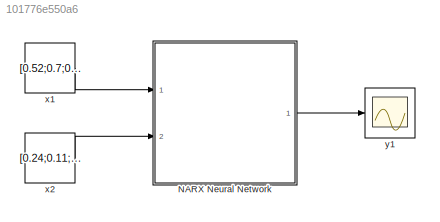
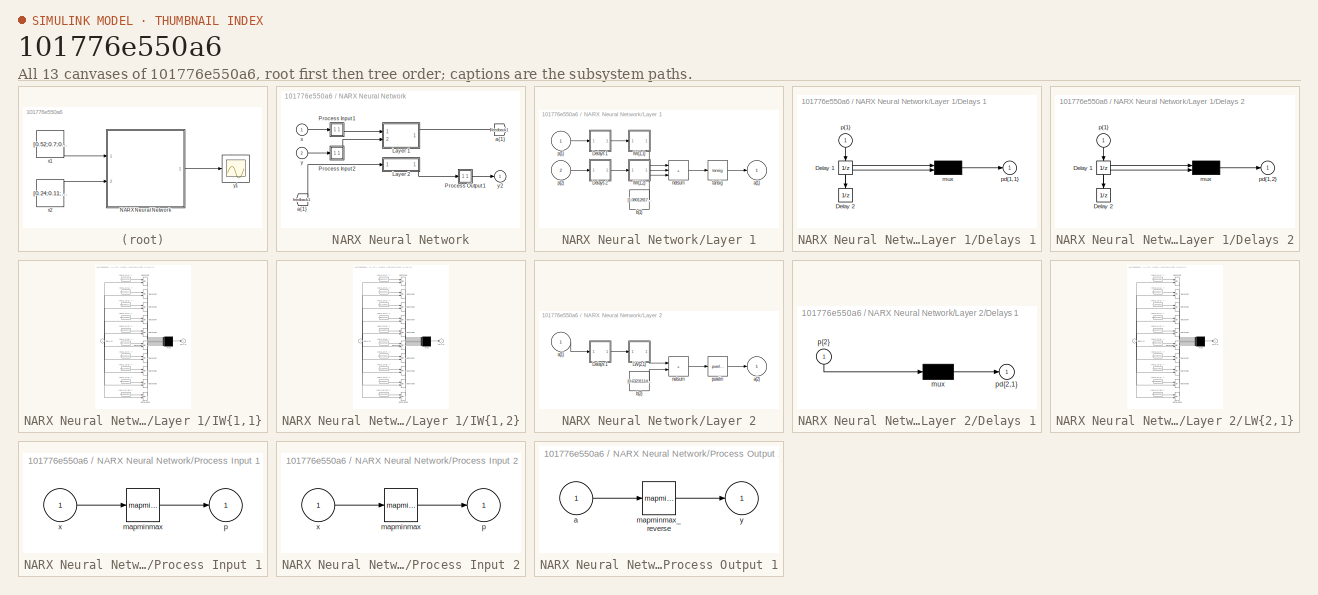
[diagram: thumbnail index - all 13 canvases of the model, root first then tree order]
MODEL slx_101776e550a6
KIND model
CONFIG AbsTol = auto
CONFIG EnableMultiTasking = off
CONFIG FixedStep = auto
CONFIG MaxStep = auto
CONFIG MinStep = auto
CONFIG RelTol = 1e-3
CONFIG SampleTimeConstraint = Unconstrained
CONFIG SolverName = VariableStepAuto
CONFIG StartTime = 0.0
CONFIG StopTime = 10.0
BLOCK [SubSystem] NARX Neural Network
  Ports = [2, 1]
  RequestExecContextInheritance = off
BLOCK [From] NARX Neural Network/ a{1} 
  GotoTag = feedback1
BLOCK [SubSystem] NARX Neural Network/Layer 1
  Ports = [2, 1]
  RequestExecContextInheritance = off
BLOCK [SubSystem] NARX Neural Network/Layer 1/Delays 1
  Ports = [1, 1]
  RequestExecContextInheritance = off
BLOCK [UnitDelay] NARX Neural Network/Layer 1/Delays 1/Delay 1
  InitialCondition = pi_input_1_delayed_1
  NameLocation = left
BLOCK [UnitDelay] NARX Neural Network/Layer 1/Delays 1/Delay 2
  InitialCondition = pi_input_1_delayed_2
  NameLocation = left
BLOCK [Mux] NARX Neural Network/Layer 1/Delays 1/mux
  Inputs = 2
  Ports = [2, 1]
BLOCK [Outport] NARX Neural Network/Layer 1/Delays 1/pd{1,1}
BLOCK [Inport] NARX Neural Network/Layer 1/Delays 1/p{1}
  NameLocation = left
  PortDimensions = 4
  SampleTime = 1
BLOCK [SubSystem] NARX Neural Network/Layer 1/Delays 2
  Ports = [1, 1]
  RequestExecContextInheritance = off
BLOCK [UnitDelay] NARX Neural Network/Layer 1/Delays 2/Delay 1
  InitialCondition = pi_input_2_delayed_1
  NameLocation = left
BLOCK [UnitDelay] NARX Neural Network/Layer 1/Delays 2/Delay 2
  InitialCondition = pi_input_2_delayed_2
  NameLocation = left
BLOCK [Mux] NARX Neural Network/Layer 1/Delays 2/mux
  Inputs = 2
  Ports = [2, 1]
BLOCK [Outport] NARX Neural Network/Layer 1/Delays 2/pd{1,2}
BLOCK [Inport] NARX Neural Network/Layer 1/Delays 2/p{1}
  NameLocation = left
  PortDimensions = 10
  SampleTime = 1
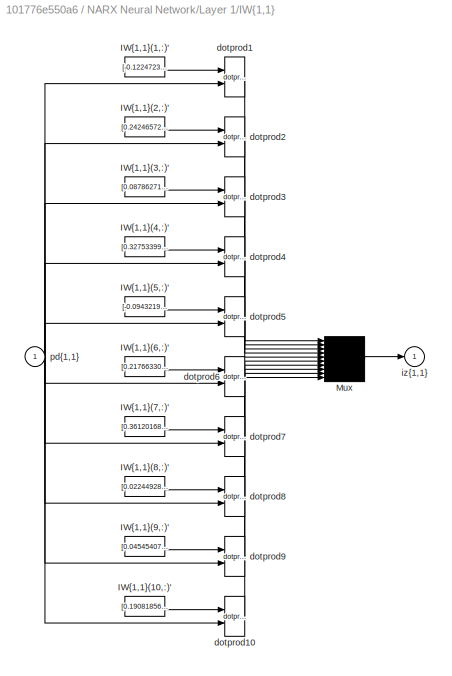
BLOCK [SubSystem] NARX Neural Network/Layer 1/IW{1,1}
  Ports = [1, 1]
  RequestExecContextInheritance = off
BLOCK [Constant] NARX Neural Network/Layer 1/IW{1,1}/IW{1,1}(1,:)'
  Value = [-0.1224723638716402052128984223600127734243869781494140625;-0.3272459825504128172468654156546108424663543701171875;-0.1644271449580847199722910545460763387382030487060546875;0.57264450002805056261223626279388554394245147705078125;-0.06048568878075073762534685783975874073803424835205078125;0.223227164473066286287661341702914796769618988037109375;-0.0190584242402477774258606757484812987968325614929...<+63ch>
BLOCK [Constant] NARX Neural Network/Layer 1/IW{1,1}/IW{1,1}(10,:)'
  Value = [0.1908185619389482223784426651036483235657215118408203125;-0.364308552820070408184705001986003480851650238037109375;0.042247088415687049367530647714374936185777187347412109375;-0.4511925818793398601513899848214350640773773193359375;0.2259289495251827484256779143834137357771396636962890625;-0.3262510626149310866139785503037273883819580078125;-0.05500614232348080556711522604018682613968849182128906...<+59ch>
BLOCK [Constant] NARX Neural Network/Layer 1/IW{1,1}/IW{1,1}(2,:)'
  Value = [0.2424657229293740723363725919625721871852874755859375;0.61044817882070490089319036997039802372455596923828125;0.029426927959954295166422610918743885122239589691162109375;-0.389312569909250838495751168011338450014591217041015625;-0.362729002225335772635617104242555797100067138671875;-0.2394230697254556561315297358305542729794979095458984375;-0.06831178591093495233721455406339373439550399780273437...<+61ch>
BLOCK [Constant] NARX Neural Network/Layer 1/IW{1,1}/IW{1,1}(3,:)'
  Value = [0.0878627153945485683816940536416950635612010955810546875;-0.10868956786818624593582427451110561378300189971923828125;0.003320688322202099661273333452982114977203309535980224609375;-0.028863266432759278334874153415512409992516040802001953125;-0.004309564181281520280075714168788181268610060214996337890625;0.093685284602520735308672783503425307571887969970703125;-0.038558146992500569316675296249741...<+82ch>
BLOCK [Constant] NARX Neural Network/Layer 1/IW{1,1}/IW{1,1}(4,:)'
  Value = [0.32753399114338510589305997200426645576953887939453125;-0.06516688941377120347642204478688654489815235137939453125;0.2778103137181517912068784426082856953144073486328125;0.538106050871987928729822669993154704570770263671875;0.269643477419196420097335931131965480744838714599609375;0.1808721157042202654086082702633575536310672760009765625;-0.20367457353888440696465522705693729221820831298828125;0....<+56ch>
BLOCK [Constant] NARX Neural Network/Layer 1/IW{1,1}/IW{1,1}(5,:)'
  Value = [-0.09432192176716279463644099223529337905347347259521484375;0.384912230366909413614706636508344672620296478271484375;-0.013107624645180011857537039077215013094246387481689453125;0.432402225644634763401796817561262287199497222900390625;0.01467470846526797330355851300964786787517368793487548828125;-0.311855250125882499379059709099237807095050811767578125;0.007566019275313939397575868639478358090855...<+72ch>
BLOCK [Constant] NARX Neural Network/Layer 1/IW{1,1}/IW{1,1}(6,:)'
  Value = [0.217663304750638719742283910818514414131641387939453125;0.0160955223635426032668949147819148492999374866485595703125;0.03373270263645840316701907113383640535175800323486328125;0.461161766861531818850750141791650094091892242431640625;-0.1841467185569863052041483797438559122383594512939453125;-0.06357475733769908654569036343673360534012317657470703125;-0.0411771805446624061808336136891739442944526...<+76ch>
BLOCK [Constant] NARX Neural Network/Layer 1/IW{1,1}/IW{1,1}(7,:)'
  Value = [0.36120168756955084443660553006338886916637420654296875;-0.1693601286070866851485305915048229508101940155029296875;-0.037610779283216357049557387881577596999704837799072265625;-0.2152776354201784148045817346428520977497100830078125;0.06378422228839415730750062039078329689800739288330078125;0.07441943145178138430129166636106674559414386749267578125;-0.0062424893192859591539711772156806546263396739...<+71ch>
BLOCK [Constant] NARX Neural Network/Layer 1/IW{1,1}/IW{1,1}(8,:)'
  Value = [0.0224492811909891530619542976410230039618909358978271484375;0.004359173224923172142164506936978796147741377353668212890625;-0.0123879902387121453022356121209668344818055629730224609375;0.261814032696891130225225197136751376092433929443359375;-0.00952574033227335074947017545810012961737811565399169921875;0.1042534958370524289517078386779758147895336151123046875;0.009669143693752720036815873072555...<+84ch>
BLOCK [Constant] NARX Neural Network/Layer 1/IW{1,1}/IW{1,1}(9,:)'
  Value = [0.045454074938318156373640022138715721666812896728515625;0.43299066027697208358659963778336532413959503173828125;-0.07572779606926942352895792964773136191070079803466796875;0.297556185334404366127358798621571622788906097412109375;-0.0690048253928155219671936038139392621815204620361328125;-0.345115340545246784831334707632777281105518341064453125;0.17919963849835010560873627127875806763768196105957...<+62ch>
BLOCK [Mux] NARX Neural Network/Layer 1/IW{1,1}/Mux
  Inputs = 10
  Ports = [10, 1]
BLOCK [Reference] NARX Neural Network/Layer 1/IW{1,1}/dotprod1  REF=neural/Weight Functions/dotprod
  Ports = [2, 1]
  SourceBlock = neural/Weight Functions/dotprod
  SourceProductBaseCode = NN
  SourceType = DOTPROD
BLOCK [Reference] NARX Neural Network/Layer 1/IW{1,1}/dotprod10  REF=neural/Weight Functions/dotprod
  Ports = [2, 1]
  SourceBlock = neural/Weight Functions/dotprod
  SourceProductBaseCode = NN
  SourceType = DOTPROD
BLOCK [Reference] NARX Neural Network/Layer 1/IW{1,1}/dotprod2  REF=neural/Weight Functions/dotprod
  Ports = [2, 1]
  SourceBlock = neural/Weight Functions/dotprod
  SourceProductBaseCode = NN
  SourceType = DOTPROD
BLOCK [Reference] NARX Neural Network/Layer 1/IW{1,1}/dotprod3  REF=neural/Weight Functions/dotprod
  Ports = [2, 1]
  SourceBlock = neural/Weight Functions/dotprod
  SourceProductBaseCode = NN
  SourceType = DOTPROD
BLOCK [Reference] NARX Neural Network/Layer 1/IW{1,1}/dotprod4  REF=neural/Weight Functions/dotprod
  Ports = [2, 1]
  SourceBlock = neural/Weight Functions/dotprod
  SourceProductBaseCode = NN
  SourceType = DOTPROD
BLOCK [Reference] NARX Neural Network/Layer 1/IW{1,1}/dotprod5  REF=neural/Weight Functions/dotprod
  Ports = [2, 1]
  SourceBlock = neural/Weight Functions/dotprod
  SourceProductBaseCode = NN
  SourceType = DOTPROD
BLOCK [Reference] NARX Neural Network/Layer 1/IW{1,1}/dotprod6  REF=neural/Weight Functions/dotprod
  Ports = [2, 1]
  SourceBlock = neural/Weight Functions/dotprod
  SourceProductBaseCode = NN
  SourceType = DOTPROD
BLOCK [Reference] NARX Neural Network/Layer 1/IW{1,1}/dotprod7  REF=neural/Weight Functions/dotprod
  Ports = [2, 1]
  SourceBlock = neural/Weight Functions/dotprod
  SourceProductBaseCode = NN
  SourceType = DOTPROD
BLOCK [Reference] NARX Neural Network/Layer 1/IW{1,1}/dotprod8  REF=neural/Weight Functions/dotprod
  Ports = [2, 1]
  SourceBlock = neural/Weight Functions/dotprod
  SourceProductBaseCode = NN
  SourceType = DOTPROD
BLOCK [Reference] NARX Neural Network/Layer 1/IW{1,1}/dotprod9  REF=neural/Weight Functions/dotprod
  Ports = [2, 1]
  SourceBlock = neural/Weight Functions/dotprod
  SourceProductBaseCode = NN
  SourceType = DOTPROD
BLOCK [Outport] NARX Neural Network/Layer 1/IW{1,1}/iz{1,1}
BLOCK [Inport] NARX Neural Network/Layer 1/IW{1,1}/pd{1,1}
  PortDimensions = 8
  SampleTime = 1
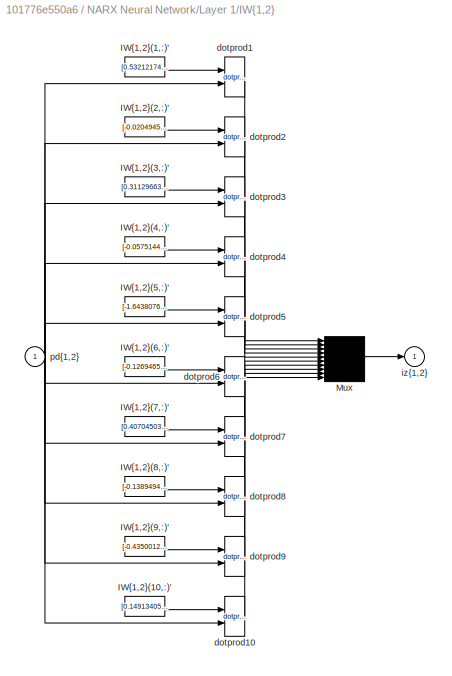
BLOCK [SubSystem] NARX Neural Network/Layer 1/IW{1,2}
  Ports = [1, 1]
  RequestExecContextInheritance = off
BLOCK [Constant] NARX Neural Network/Layer 1/IW{1,2}/IW{1,2}(1,:)'
  Value = [0.53212174794800748411915947144734673202037811279296875;0.817018572346948968032620541634969413280487060546875;-0.07493102459351637378848209891657461412250995635986328125;0.53944162567220654835864479537121951580047607421875;0.10845896887198758218318062063190154731273651123046875;1.132252522673124150998091863584704697132110595703125;0.327636360657517611283395808641216717660427093505859375;0.7099417...<+726ch>
BLOCK [Constant] NARX Neural Network/Layer 1/IW{1,2}/IW{1,2}(10,:)'
  Value = [0.149134050770307780009460429937462322413921356201171875;0.016092934597212338321270408414420671761035919189453125;-0.497056507890472010213755993390805087983608245849609375;-0.47348819318803136990680968665401451289653778076171875;0.01510195472959737460205698056370238191448152065277099609375;-0.182922680974307194645689378376118838787078857421875;-0.34197417891304082715464573993813246488571166992187...<+742ch>
BLOCK [Constant] NARX Neural Network/Layer 1/IW{1,2}/IW{1,2}(2,:)'
  Value = [-0.0204945748265934028775614450523789855651557445526123046875;1.9312316925216492791150812990963459014892578125;-0.349380909352063617756556368476594798266887664794921875;-0.495796724108398423336296900743036530911922454833984375;0.446205717562955295196758243037038482725620269775390625;0.262472904500300974195425851576146669685840606689453125;-0.41517043024050115374024017000920139253139495849609375;0...<+748ch>
BLOCK [Constant] NARX Neural Network/Layer 1/IW{1,2}/IW{1,2}(3,:)'
  Value = [0.311296639071176162172349677348393015563488006591796875;0.344762228671464610041397236273041926324367523193359375;0.0278297350072136233378738978672117809765040874481201171875;0.225855871469414937191544368033646605908870697021484375;-0.50201215734075166352567975991405546665191650390625;-0.51006517344202284558463134089834056794643402099609375;0.368850413907754026698881943957530893385410308837890625...<+753ch>
BLOCK [Constant] NARX Neural Network/Layer 1/IW{1,2}/IW{1,2}(4,:)'
  Value = [-0.057514447860808053103465198319099727086722850799560546875;0.2488193461722778554445767440483905375003814697265625;0.436179108525951431118983236956410109996795654296875;0.62850371404861415935982904557022266089916229248046875;0.360353789899425347442729616886936128139495849609375;0.319649554425117887745955158607102930545806884765625;-0.056141492256935675297935262051396421156823635101318359375;-0.0...<+741ch>
BLOCK [Constant] NARX Neural Network/Layer 1/IW{1,2}/IW{1,2}(5,:)'
  Value = [-1.6438076496059796927085017159697599709033966064453125;-0.086324763306777685389903354007401503622531890869140625;-0.09369173695724915262861287601481308229267597198486328125;0.254420292022872585047110760569921694695949554443359375;-0.0540278394423806818114286443233140744268894195556640625;0.025839570314925057459287671690617571584880352020263671875;0.48380883965954130099262897601875010877847671508...<+767ch>
BLOCK [Constant] NARX Neural Network/Layer 1/IW{1,2}/IW{1,2}(6,:)'
  Value = [-0.126946547161197520470210520215914584696292877197265625;-0.10739417764484891770759844575877650640904903411865234375;1.8210936696847757065853556923684664070606231689453125;0.0805106956973491438844803269603289663791656494140625;0.67265333014620309892706018217722885310649871826171875;0.049347224056254017365841235687184962444007396697998046875;-0.0877146572882806646598297106720565352588891983032226...<+749ch>
BLOCK [Constant] NARX Neural Network/Layer 1/IW{1,2}/IW{1,2}(7,:)'
  Value = [0.407045031801934131809872496887692250311374664306640625;0.50594537530523042700991709352820180356502532958984375;-0.006874370035477550024138881923363442183472216129302978515625;0.460101943369063182132094880216754972934722900390625;-0.1843383523793279687996715665576630271971225738525390625;-0.4273468064774779140435612134751863777637481689453125;0.326576840546616620208908443601103499531745910644531...<+744ch>
BLOCK [Constant] NARX Neural Network/Layer 1/IW{1,2}/IW{1,2}(8,:)'
  Value = [-0.13894941599945964672002673978568054735660552978515625;-0.19210359160348111640104207253898493945598602294921875;0.023064825387133815193241304086768650449812412261962890625;1.201400733368269246881254730396904051303863525390625;0.32834265774768944812223026019637472927570343017578125;0.52654210812649127060325326965539716184139251708984375;-0.3293914298690354680587688562809489667415618896484375;0.4...<+746ch>
BLOCK [Constant] NARX Neural Network/Layer 1/IW{1,2}/IW{1,2}(9,:)'
  Value = [-0.435001277681425657650748917149030603468418121337890625;-0.2161688784686718600713817295400076545774936676025390625;0.2019963442699870548313612061974708922207355499267578125;-0.15392579474173373466072689552675001323223114013671875;-0.12359328339492926807086092821919010020792484283447265625;0.10924243951800226282156103252418688498437404632568359375;-0.121462177183892724996461254249879857525229454...<+760ch>
BLOCK [Mux] NARX Neural Network/Layer 1/IW{1,2}/Mux
  Inputs = 10
  Ports = [10, 1]
BLOCK [Reference] NARX Neural Network/Layer 1/IW{1,2}/dotprod1  REF=neural/Weight Functions/dotprod
  Ports = [2, 1]
  SourceBlock = neural/Weight Functions/dotprod
  SourceProductBaseCode = NN
  SourceType = DOTPROD
BLOCK [Reference] NARX Neural Network/Layer 1/IW{1,2}/dotprod10  REF=neural/Weight Functions/dotprod
  Ports = [2, 1]
  SourceBlock = neural/Weight Functions/dotprod
  SourceProductBaseCode = NN
  SourceType = DOTPROD
BLOCK [Reference] NARX Neural Network/Layer 1/IW{1,2}/dotprod2  REF=neural/Weight Functions/dotprod
  Ports = [2, 1]
  SourceBlock = neural/Weight Functions/dotprod
  SourceProductBaseCode = NN
  SourceType = DOTPROD
BLOCK [Reference] NARX Neural Network/Layer 1/IW{1,2}/dotprod3  REF=neural/Weight Functions/dotprod
  Ports = [2, 1]
  SourceBlock = neural/Weight Functions/dotprod
  SourceProductBaseCode = NN
  SourceType = DOTPROD
BLOCK [Reference] NARX Neural Network/Layer 1/IW{1,2}/dotprod4  REF=neural/Weight Functions/dotprod
  Ports = [2, 1]
  SourceBlock = neural/Weight Functions/dotprod
  SourceProductBaseCode = NN
  SourceType = DOTPROD
BLOCK [Reference] NARX Neural Network/Layer 1/IW{1,2}/dotprod5  REF=neural/Weight Functions/dotprod
  Ports = [2, 1]
  SourceBlock = neural/Weight Functions/dotprod
  SourceProductBaseCode = NN
  SourceType = DOTPROD
BLOCK [Reference] NARX Neural Network/Layer 1/IW{1,2}/dotprod6  REF=neural/Weight Functions/dotprod
  Ports = [2, 1]
  SourceBlock = neural/Weight Functions/dotprod
  SourceProductBaseCode = NN
  SourceType = DOTPROD
BLOCK [Reference] NARX Neural Network/Layer 1/IW{1,2}/dotprod7  REF=neural/Weight Functions/dotprod
  Ports = [2, 1]
  SourceBlock = neural/Weight Functions/dotprod
  SourceProductBaseCode = NN
  SourceType = DOTPROD
BLOCK [Reference] NARX Neural Network/Layer 1/IW{1,2}/dotprod8  REF=neural/Weight Functions/dotprod
  Ports = [2, 1]
  SourceBlock = neural/Weight Functions/dotprod
  SourceProductBaseCode = NN
  SourceType = DOTPROD
BLOCK [Reference] NARX Neural Network/Layer 1/IW{1,2}/dotprod9  REF=neural/Weight Functions/dotprod
  Ports = [2, 1]
  SourceBlock = neural/Weight Functions/dotprod
  SourceProductBaseCode = NN
  SourceType = DOTPROD
BLOCK [Outport] NARX Neural Network/Layer 1/IW{1,2}/iz{1,2}
BLOCK [Inport] NARX Neural Network/Layer 1/IW{1,2}/pd{1,2}
  PortDimensions = 20
  SampleTime = 1
BLOCK [Outport] NARX Neural Network/Layer 1/a{1}
  InitialOutput = [0;0;0;0;0;0;0;0;0;0]
BLOCK [Constant] NARX Neural Network/Layer 1/b{1}
  Value = [1.0801281717727395648154242735472507774829864501953125;-1.310912600446497489059538565925322473049163818359375;0.9404335907148200224270340186194516718387603759765625;-0.81368279707896140617862101862556301057338714599609375;0.432949116587421134472180028751608915627002716064453125;0.068784327532554534467834628230775706470012664794921875;-0.29264096087120716749296889247489161789417266845703125;0.7805...<+155ch>
BLOCK [Sum] NARX Neural Network/Layer 1/netsum
  IconShape = rectangular
  InputSameDT = on
  Inputs = 3
  OutDataTypeStr = Inherit: Same as first input
  Ports = [3, 1]
  SaturateOnIntegerOverflow = on
BLOCK [Inport] NARX Neural Network/Layer 1/p{1}
  PortDimensions = 4
  SampleTime = 1
BLOCK [Inport] NARX Neural Network/Layer 1/p{2}
  Port = 2
  PortDimensions = 10
  SampleTime = 1
BLOCK [Reference] NARX Neural Network/Layer 1/tansig  REF=neural/Transfer Functions/tansig
  Ports = [1, 1]
  SourceBlock = neural/Transfer Functions/tansig
  SourceProductBaseCode = NN
  SourceType = TANSIG
BLOCK [SubSystem] NARX Neural Network/Layer 2
  Ports = [1, 1]
  RequestExecContextInheritance = off
BLOCK [SubSystem] NARX Neural Network/Layer 2/Delays 1
  Ports = [1, 1]
  RequestExecContextInheritance = off
BLOCK [Mux] NARX Neural Network/Layer 2/Delays 1/mux
  Inputs = 1
  Ports = [1, 1]
BLOCK [Outport] NARX Neural Network/Layer 2/Delays 1/pd{2,1}
BLOCK [Inport] NARX Neural Network/Layer 2/Delays 1/p{2}
  NameLocation = left
  PortDimensions = 10
  SampleTime = 1
BLOCK [SubSystem] NARX Neural Network/Layer 2/LW{2,1}
  Ports = [1, 1]
  RequestExecContextInheritance = off
BLOCK [Constant] NARX Neural Network/Layer 2/LW{2,1}/IW{2,1}(1,:)'
  Value = [0.2593109911101532105703881825320422649383544921875;0.043027177460193015423595142010526615194976329803466796875;-0.031630578930780896274033153758864500559866428375244140625;-0.8946206870678163891597023393842391669750213623046875;-1.376635707680159637078531886800192296504974365234375;0.0101372112858142127134186694092932157218456268310546875;-0.036902676601514618204280537838712916709482669830322265...<+176ch>
BLOCK [Constant] NARX Neural Network/Layer 2/LW{2,1}/IW{2,1}(10,:)'
  Value = [0.259353080009003644779141950493794865906238555908203125;0.0344788966224069126642604032895178534090518951416015625;-1.639734198097074990840837926953099668025970458984375;0.037171314064603451499113617728653480298817157745361328125;-0.044091665192930361294454399967435165308415889739990234375;0.113806681736434545104685867045191116631031036376953125;-0.040461815656080674097339056061173323541879653930...<+181ch>
BLOCK [Constant] NARX Neural Network/Layer 2/LW{2,1}/IW{2,1}(2,:)'
  Value = [0.63030827275463219283579974216991104185581207275390625;0.95420909453976487935022987585398368537425994873046875;-0.0170684212993636071076242188837568392045795917510986328125;0.10423405085466287689488495971090742386877536773681640625;0.0933351443445988027125537200845428742468357086181640625;0.05706595557659464856836706303511164151132106781005859375;-0.0036970778483764979611969625494793945108540356...<+190ch>
BLOCK [Constant] NARX Neural Network/Layer 2/LW{2,1}/IW{2,1}(3,:)'
  Value = [-1.3649029808437316280134155022096820175647735595703125;-0.0099506250485993270882278949329702300019562244415283203125;0.004944580631372802632939045253124277223832905292510986328125;0.52636799453096261292017743471660651266574859619140625;0.0107608841966076625162873625640713726170361042022705078125;3.2396981083788300992409858736209571361541748046875;0.01758270636367695663460075650164071703329682350...<+189ch>
BLOCK [Constant] NARX Neural Network/Layer 2/LW{2,1}/IW{2,1}(4,:)'
  Value = [0.060748789116446537394988780533822136931121349334716796875;-0.00794143061588940997463925697275044512934982776641845703125;-0.0246556586678514065569256530352504341863095760345458984375;-0.036168325016118781090046496728973579593002796173095703125;0.017769845931746054701338977110935957171022891998291015625;-0.00682202459217154215387335369769061799161136150360107421875;0.0047869357173603317018306668...<+202ch>
BLOCK [Constant] NARX Neural Network/Layer 2/LW{2,1}/IW{2,1}(5,:)'
  Value = [-0.01407475869495870314518359833755312138237059116363525390625;-0.0813608715144924499185208333074115216732025146484375;0.1181201219432181648283375352548318915069103240966796875;0.76491096816797898849671355492318980395793914794921875;0.11204011842603171789090055199267226271331310272216796875;-0.385610136227055699809085353990667499601840972900390625;0.09409237571880205153185272592963883653283119201...<+183ch>
BLOCK [Constant] NARX Neural Network/Layer 2/LW{2,1}/IW{2,1}(6,:)'
  Value = [0.09194150932908216888872487970729707740247249603271484375;0.00893170196256900909836939916885967249982059001922607421875;-0.00270216338763807316369902622454901575110852718353271484375;0.4384877115912220180149461157270707190036773681640625;-0.010539276489478908993557837447951897047460079193115234375;0.1074971903280156071414097596061765216290950775146484375;-0.01392686220378177089362914387038472341...<+198ch>
BLOCK [Constant] NARX Neural Network/Layer 2/LW{2,1}/IW{2,1}(7,:)'
  Value = [1.2079879297442683849794775596819818019866943359375;-0.96997720146081534142723512559314258396625518798828125;1.341993650625849188173788206768222153186798095703125;2.48313839798580904272284897160716354846954345703125;1.236241853293317038975374089204706251621246337890625;-2.98728747420875695439690389321185648441314697265625;0.99144276990696145190895549603737890720367431640625;-1.8470882435209095007...<+144ch>
BLOCK [Constant] NARX Neural Network/Layer 2/LW{2,1}/IW{2,1}(8,:)'
  Value = [-0.6917669747991321838043177194776944816112518310546875;0.02005886442724380547275586650357581675052642822265625;0.2344520490258656664206426967211882583796977996826171875;0.16810169695141408130467652881634421646595001220703125;-0.0161572705531280273738570230079858447425067424774169921875;-0.1757694695147239138943717762231244705617427825927734375;-0.0217584638624064921619272183761495398357510566711...<+179ch>
BLOCK [Constant] NARX Neural Network/Layer 2/LW{2,1}/IW{2,1}(9,:)'
  Value = [0.1908306327012936065568027288463781587779521942138671875;-0.0182508750380459862372450885459329583682119846343994140625;0.006372142546187395568957345659555357997305691242218017578125;-0.071890224988197803934752982968348078429698944091796875;0.044783945745097551716096262452992959879338741302490234375;0.026064510211621379209834259427225333638489246368408203125;-0.94180942639733522536715781825478188...<+190ch>
BLOCK [Mux] NARX Neural Network/Layer 2/LW{2,1}/Mux
  Inputs = 10
  Ports = [10, 1]
BLOCK [Inport] NARX Neural Network/Layer 2/LW{2,1}/ad{2,1}
  PortDimensions = 10
  SampleTime = 1
BLOCK [Reference] NARX Neural Network/Layer 2/LW{2,1}/dotprod1  REF=neural/Weight Functions/dotprod
  Ports = [2, 1]
  SourceBlock = neural/Weight Functions/dotprod
  SourceProductBaseCode = NN
  SourceType = DOTPROD
BLOCK [Reference] NARX Neural Network/Layer 2/LW{2,1}/dotprod10  REF=neural/Weight Functions/dotprod
  Ports = [2, 1]
  SourceBlock = neural/Weight Functions/dotprod
  SourceProductBaseCode = NN
  SourceType = DOTPROD
BLOCK [Reference] NARX Neural Network/Layer 2/LW{2,1}/dotprod2  REF=neural/Weight Functions/dotprod
  Ports = [2, 1]
  SourceBlock = neural/Weight Functions/dotprod
  SourceProductBaseCode = NN
  SourceType = DOTPROD
BLOCK [Reference] NARX Neural Network/Layer 2/LW{2,1}/dotprod3  REF=neural/Weight Functions/dotprod
  Ports = [2, 1]
  SourceBlock = neural/Weight Functions/dotprod
  SourceProductBaseCode = NN
  SourceType = DOTPROD
BLOCK [Reference] NARX Neural Network/Layer 2/LW{2,1}/dotprod4  REF=neural/Weight Functions/dotprod
  Ports = [2, 1]
  SourceBlock = neural/Weight Functions/dotprod
  SourceProductBaseCode = NN
  SourceType = DOTPROD
BLOCK [Reference] NARX Neural Network/Layer 2/LW{2,1}/dotprod5  REF=neural/Weight Functions/dotprod
  Ports = [2, 1]
  SourceBlock = neural/Weight Functions/dotprod
  SourceProductBaseCode = NN
  SourceType = DOTPROD
BLOCK [Reference] NARX Neural Network/Layer 2/LW{2,1}/dotprod6  REF=neural/Weight Functions/dotprod
  Ports = [2, 1]
  SourceBlock = neural/Weight Functions/dotprod
  SourceProductBaseCode = NN
  SourceType = DOTPROD
BLOCK [Reference] NARX Neural Network/Layer 2/LW{2,1}/dotprod7  REF=neural/Weight Functions/dotprod
  Ports = [2, 1]
  SourceBlock = neural/Weight Functions/dotprod
  SourceProductBaseCode = NN
  SourceType = DOTPROD
BLOCK [Reference] NARX Neural Network/Layer 2/LW{2,1}/dotprod8  REF=neural/Weight Functions/dotprod
  Ports = [2, 1]
  SourceBlock = neural/Weight Functions/dotprod
  SourceProductBaseCode = NN
  SourceType = DOTPROD
BLOCK [Reference] NARX Neural Network/Layer 2/LW{2,1}/dotprod9  REF=neural/Weight Functions/dotprod
  Ports = [2, 1]
  SourceBlock = neural/Weight Functions/dotprod
  SourceProductBaseCode = NN
  SourceType = DOTPROD
BLOCK [Outport] NARX Neural Network/Layer 2/LW{2,1}/lz{2,1}
BLOCK [Inport] NARX Neural Network/Layer 2/a{1} 
  PortDimensions = 10
  SampleTime = 1
BLOCK [Outport] NARX Neural Network/Layer 2/a{2}
  InitialOutput = [0;0;0;0;0;0;0;0;0;0]
BLOCK [Constant] NARX Neural Network/Layer 2/b{2}
  Value = [0.63231114797012033523770924148266203701496124267578125;0.077425009453641446821592353444430045783519744873046875;0.69336797498678903739488532664836384356021881103515625;0.96191102890088908683452473269426263868808746337890625;-0.01280570802179627383499127546429008361883461475372314453125;0.1820181237505598959014463389394222758710384368896484375;-3.18169363647799041672215025755576789379119873046875...<+169ch>
BLOCK [Sum] NARX Neural Network/Layer 2/netsum
  IconShape = rectangular
  InputSameDT = on
  Inputs = 2
  OutDataTypeStr = Inherit: Same as first input
  Ports = [2, 1]
  SaturateOnIntegerOverflow = on
BLOCK [Reference] NARX Neural Network/Layer 2/purelin  REF=neural/Transfer Functions/purelin
  Ports = [1, 1]
  SourceBlock = neural/Transfer Functions/purelin
  SourceProductBaseCode = NN
  SourceType = PURELIN
BLOCK [SubSystem] NARX Neural Network/Process Input 1
  Ports = [1, 1]
  RequestExecContextInheritance = off
BLOCK [Reference] NARX Neural Network/Process Input 1/mapminmax  REF=neural/Processing Functions/mapminmax
  Ports = [1, 1]
  SourceBlock = neural/Processing Functions/mapminmax
  SourceProductBaseCode = NN
  SourceType = MAPMINMAX Preprocess
BLOCK [Outport] NARX Neural Network/Process Input 1/p
  PortDimensions = 4
  SampleTime = 1
BLOCK [Inport] NARX Neural Network/Process Input 1/x
  PortDimensions = 4
  SampleTime = 1
BLOCK [SubSystem] NARX Neural Network/Process Input 2
  Ports = [1, 1]
  RequestExecContextInheritance = off
BLOCK [Reference] NARX Neural Network/Process Input 2/mapminmax  REF=neural/Processing Functions/mapminmax
  Ports = [1, 1]
  SourceBlock = neural/Processing Functions/mapminmax
  SourceProductBaseCode = NN
  SourceType = MAPMINMAX Preprocess
BLOCK [Outport] NARX Neural Network/Process Input 2/p
  PortDimensions = 10
  SampleTime = 1
BLOCK [Inport] NARX Neural Network/Process Input 2/x
  PortDimensions = 10
  SampleTime = 1
BLOCK [SubSystem] NARX Neural Network/Process Output 1
  Ports = [1, 1]
  RequestExecContextInheritance = off
BLOCK [Inport] NARX Neural Network/Process Output 1/a
  PortDimensions = 10
  SampleTime = 1
BLOCK [Reference] NARX Neural Network/Process Output 1/mapminmax_reverse  REF=neural/Processing Functions/mapminmax_reverse
  Ports = [1, 1]
  SourceBlock = neural/Processing Functions/mapminmax_reverse
  SourceProductBaseCode = NN
  SourceType = MAPMINMAX Reverse Process
BLOCK [Outport] NARX Neural Network/Process Output 1/y
  PortDimensions = 10
  SampleTime = 1
BLOCK [Goto] NARX Neural Network/a{1}
  GotoTag = feedback1
BLOCK [Inport] NARX Neural Network/x
  PortDimensions = 4
  SampleTime = 1
BLOCK [Inport] NARX Neural Network/y
  Port = 2
  PortDimensions = 10
  SampleTime = 1
BLOCK [Outport] NARX Neural Network/y2
  InitialOutput = [0;0;0;0;0;0;0;0;0;0]
BLOCK [Constant] x1
  SampleTime = 1
  Value = [0.52;0.7;0.2;0.89]
BLOCK [Constant] x2
  SampleTime = 1
  Value = [0.24;0.11;0.85;0.077;0.25;0.78;0.12;0.18;0.5;0.34]
BLOCK [Scope] y1
  Floating = off
  NumInputPorts = 1
  Ports = [1]
LINE NARX Neural Network/ a{1} :1 -> NARX Neural Network/Layer 2:1
NET NARX Neural Network/Layer 1/Delays 1/Delay 1:1 -> NARX Neural Network/Layer 1/Delays 1/Delay 2:1, NARX Neural Network/Layer 1/Delays 1/mux:1
LINE NARX Neural Network/Layer 1/Delays 1/Delay 2:1 -> NARX Neural Network/Layer 1/Delays 1/mux:2
LINE NARX Neural Network/Layer 1/Delays 1/mux:1 -> NARX Neural Network/Layer 1/Delays 1/pd{1,1}:1
LINE NARX Neural Network/Layer 1/Delays 1/p{1}:1 -> NARX Neural Network/Layer 1/Delays 1/Delay 1:1
LINE NARX Neural Network/Layer 1/Delays 1:1 -> NARX Neural Network/Layer 1/IW{1,1}:1
NET NARX Neural Network/Layer 1/Delays 2/Delay 1:1 -> NARX Neural Network/Layer 1/Delays 2/Delay 2:1, NARX Neural Network/Layer 1/Delays 2/mux:1
LINE NARX Neural Network/Layer 1/Delays 2/Delay 2:1 -> NARX Neural Network/Layer 1/Delays 2/mux:2
LINE NARX Neural Network/Layer 1/Delays 2/mux:1 -> NARX Neural Network/Layer 1/Delays 2/pd{1,2}:1
LINE NARX Neural Network/Layer 1/Delays 2/p{1}:1 -> NARX Neural Network/Layer 1/Delays 2/Delay 1:1
LINE NARX Neural Network/Layer 1/Delays 2:1 -> NARX Neural Network/Layer 1/IW{1,2}:1
LINE NARX Neural Network/Layer 1/IW{1,1}/IW{1,1}(1,:)':1 -> NARX Neural Network/Layer 1/IW{1,1}/dotprod1:1
LINE NARX Neural Network/Layer 1/IW{1,1}/IW{1,1}(10,:)':1 -> NARX Neural Network/Layer 1/IW{1,1}/dotprod10:1
LINE NARX Neural Network/Layer 1/IW{1,1}/IW{1,1}(2,:)':1 -> NARX Neural Network/Layer 1/IW{1,1}/dotprod2:1
LINE NARX Neural Network/Layer 1/IW{1,1}/IW{1,1}(3,:)':1 -> NARX Neural Network/Layer 1/IW{1,1}/dotprod3:1
LINE NARX Neural Network/Layer 1/IW{1,1}/IW{1,1}(4,:)':1 -> NARX Neural Network/Layer 1/IW{1,1}/dotprod4:1
LINE NARX Neural Network/Layer 1/IW{1,1}/IW{1,1}(5,:)':1 -> NARX Neural Network/Layer 1/IW{1,1}/dotprod5:1
LINE NARX Neural Network/Layer 1/IW{1,1}/IW{1,1}(6,:)':1 -> NARX Neural Network/Layer 1/IW{1,1}/dotprod6:1
LINE NARX Neural Network/Layer 1/IW{1,1}/IW{1,1}(7,:)':1 -> NARX Neural Network/Layer 1/IW{1,1}/dotprod7:1
LINE NARX Neural Network/Layer 1/IW{1,1}/IW{1,1}(8,:)':1 -> NARX Neural Network/Layer 1/IW{1,1}/dotprod8:1
LINE NARX Neural Network/Layer 1/IW{1,1}/IW{1,1}(9,:)':1 -> NARX Neural Network/Layer 1/IW{1,1}/dotprod9:1
LINE NARX Neural Network/Layer 1/IW{1,1}/Mux:1 -> NARX Neural Network/Layer 1/IW{1,1}/iz{1,1}:1
LINE NARX Neural Network/Layer 1/IW{1,1}/dotprod10:1 -> NARX Neural Network/Layer 1/IW{1,1}/Mux:10
LINE NARX Neural Network/Layer 1/IW{1,1}/dotprod1:1 -> NARX Neural Network/Layer 1/IW{1,1}/Mux:1
LINE NARX Neural Network/Layer 1/IW{1,1}/dotprod2:1 -> NARX Neural Network/Layer 1/IW{1,1}/Mux:2
LINE NARX Neural Network/Layer 1/IW{1,1}/dotprod3:1 -> NARX Neural Network/Layer 1/IW{1,1}/Mux:3
LINE NARX Neural Network/Layer 1/IW{1,1}/dotprod4:1 -> NARX Neural Network/Layer 1/IW{1,1}/Mux:4
LINE NARX Neural Network/Layer 1/IW{1,1}/dotprod5:1 -> NARX Neural Network/Layer 1/IW{1,1}/Mux:5
LINE NARX Neural Network/Layer 1/IW{1,1}/dotprod6:1 -> NARX Neural Network/Layer 1/IW{1,1}/Mux:6
LINE NARX Neural Network/Layer 1/IW{1,1}/dotprod7:1 -> NARX Neural Network/Layer 1/IW{1,1}/Mux:7
LINE NARX Neural Network/Layer 1/IW{1,1}/dotprod8:1 -> NARX Neural Network/Layer 1/IW{1,1}/Mux:8
LINE NARX Neural Network/Layer 1/IW{1,1}/dotprod9:1 -> NARX Neural Network/Layer 1/IW{1,1}/Mux:9
NET NARX Neural Network/Layer 1/IW{1,1}/pd{1,1}:1 -> NARX Neural Network/Layer 1/IW{1,1}/dotprod10:2, NARX Neural Network/Layer 1/IW{1,1}/dotprod1:2, NARX Neural Network/Layer 1/IW{1,1}/dotprod2:2, NARX Neural Network/Layer 1/IW{1,1}/dotprod3:2, NARX Neural Network/Layer 1/IW{1,1}/dotprod4:2, NARX Neural Network/Layer 1/IW{1,1}/dotprod5:2, NARX Neural Network/Layer 1/IW{1,1}/dotprod6:2, NARX Neural Network/Layer 1/IW{1,1}/dotprod7:2, NARX Neural Network/Layer 1/IW{1,1}/dotprod8:2, NARX Neural Network/Layer 1/IW{1,1}/dotprod9:2
LINE NARX Neural Network/Layer 1/IW{1,1}:1 -> NARX Neural Network/Layer 1/netsum:1
LINE NARX Neural Network/Layer 1/IW{1,2}/IW{1,2}(1,:)':1 -> NARX Neural Network/Layer 1/IW{1,2}/dotprod1:1
LINE NARX Neural Network/Layer 1/IW{1,2}/IW{1,2}(10,:)':1 -> NARX Neural Network/Layer 1/IW{1,2}/dotprod10:1
LINE NARX Neural Network/Layer 1/IW{1,2}/IW{1,2}(2,:)':1 -> NARX Neural Network/Layer 1/IW{1,2}/dotprod2:1
LINE NARX Neural Network/Layer 1/IW{1,2}/IW{1,2}(3,:)':1 -> NARX Neural Network/Layer 1/IW{1,2}/dotprod3:1
LINE NARX Neural Network/Layer 1/IW{1,2}/IW{1,2}(4,:)':1 -> NARX Neural Network/Layer 1/IW{1,2}/dotprod4:1
LINE NARX Neural Network/Layer 1/IW{1,2}/IW{1,2}(5,:)':1 -> NARX Neural Network/Layer 1/IW{1,2}/dotprod5:1
LINE NARX Neural Network/Layer 1/IW{1,2}/IW{1,2}(6,:)':1 -> NARX Neural Network/Layer 1/IW{1,2}/dotprod6:1
LINE NARX Neural Network/Layer 1/IW{1,2}/IW{1,2}(7,:)':1 -> NARX Neural Network/Layer 1/IW{1,2}/dotprod7:1
LINE NARX Neural Network/Layer 1/IW{1,2}/IW{1,2}(8,:)':1 -> NARX Neural Network/Layer 1/IW{1,2}/dotprod8:1
LINE NARX Neural Network/Layer 1/IW{1,2}/IW{1,2}(9,:)':1 -> NARX Neural Network/Layer 1/IW{1,2}/dotprod9:1
LINE NARX Neural Network/Layer 1/IW{1,2}/Mux:1 -> NARX Neural Network/Layer 1/IW{1,2}/iz{1,2}:1
LINE NARX Neural Network/Layer 1/IW{1,2}/dotprod10:1 -> NARX Neural Network/Layer 1/IW{1,2}/Mux:10
LINE NARX Neural Network/Layer 1/IW{1,2}/dotprod1:1 -> NARX Neural Network/Layer 1/IW{1,2}/Mux:1
LINE NARX Neural Network/Layer 1/IW{1,2}/dotprod2:1 -> NARX Neural Network/Layer 1/IW{1,2}/Mux:2
LINE NARX Neural Network/Layer 1/IW{1,2}/dotprod3:1 -> NARX Neural Network/Layer 1/IW{1,2}/Mux:3
LINE NARX Neural Network/Layer 1/IW{1,2}/dotprod4:1 -> NARX Neural Network/Layer 1/IW{1,2}/Mux:4
LINE NARX Neural Network/Layer 1/IW{1,2}/dotprod5:1 -> NARX Neural Network/Layer 1/IW{1,2}/Mux:5
LINE NARX Neural Network/Layer 1/IW{1,2}/dotprod6:1 -> NARX Neural Network/Layer 1/IW{1,2}/Mux:6
LINE NARX Neural Network/Layer 1/IW{1,2}/dotprod7:1 -> NARX Neural Network/Layer 1/IW{1,2}/Mux:7
LINE NARX Neural Network/Layer 1/IW{1,2}/dotprod8:1 -> NARX Neural Network/Layer 1/IW{1,2}/Mux:8
LINE NARX Neural Network/Layer 1/IW{1,2}/dotprod9:1 -> NARX Neural Network/Layer 1/IW{1,2}/Mux:9
NET NARX Neural Network/Layer 1/IW{1,2}/pd{1,2}:1 -> NARX Neural Network/Layer 1/IW{1,2}/dotprod10:2, NARX Neural Network/Layer 1/IW{1,2}/dotprod1:2, NARX Neural Network/Layer 1/IW{1,2}/dotprod2:2, NARX Neural Network/Layer 1/IW{1,2}/dotprod3:2, NARX Neural Network/Layer 1/IW{1,2}/dotprod4:2, NARX Neural Network/Layer 1/IW{1,2}/dotprod5:2, NARX Neural Network/Layer 1/IW{1,2}/dotprod6:2, NARX Neural Network/Layer 1/IW{1,2}/dotprod7:2, NARX Neural Network/Layer 1/IW{1,2}/dotprod8:2, NARX Neural Network/Layer 1/IW{1,2}/dotprod9:2
LINE NARX Neural Network/Layer 1/IW{1,2}:1 -> NARX Neural Network/Layer 1/netsum:2
LINE NARX Neural Network/Layer 1/b{1}:1 -> NARX Neural Network/Layer 1/netsum:3
LINE NARX Neural Network/Layer 1/netsum:1 -> NARX Neural Network/Layer 1/tansig:1
LINE NARX Neural Network/Layer 1/p{1}:1 -> NARX Neural Network/Layer 1/Delays 1:1
LINE NARX Neural Network/Layer 1/p{2}:1 -> NARX Neural Network/Layer 1/Delays 2:1
LINE NARX Neural Network/Layer 1/tansig:1 -> NARX Neural Network/Layer 1/a{1}:1
LINE NARX Neural Network/Layer 1:1 -> NARX Neural Network/a{1}:1
LINE NARX Neural Network/Layer 2/Delays 1/mux:1 -> NARX Neural Network/Layer 2/Delays 1/pd{2,1}:1
LINE NARX Neural Network/Layer 2/Delays 1/p{2}:1 -> NARX Neural Network/Layer 2/Delays 1/mux:1
LINE NARX Neural Network/Layer 2/Delays 1:1 -> NARX Neural Network/Layer 2/LW{2,1}:1
LINE NARX Neural Network/Layer 2/LW{2,1}/IW{2,1}(1,:)':1 -> NARX Neural Network/Layer 2/LW{2,1}/dotprod1:1
LINE NARX Neural Network/Layer 2/LW{2,1}/IW{2,1}(10,:)':1 -> NARX Neural Network/Layer 2/LW{2,1}/dotprod10:1
LINE NARX Neural Network/Layer 2/LW{2,1}/IW{2,1}(2,:)':1 -> NARX Neural Network/Layer 2/LW{2,1}/dotprod2:1
LINE NARX Neural Network/Layer 2/LW{2,1}/IW{2,1}(3,:)':1 -> NARX Neural Network/Layer 2/LW{2,1}/dotprod3:1
LINE NARX Neural Network/Layer 2/LW{2,1}/IW{2,1}(4,:)':1 -> NARX Neural Network/Layer 2/LW{2,1}/dotprod4:1
LINE NARX Neural Network/Layer 2/LW{2,1}/IW{2,1}(5,:)':1 -> NARX Neural Network/Layer 2/LW{2,1}/dotprod5:1
LINE NARX Neural Network/Layer 2/LW{2,1}/IW{2,1}(6,:)':1 -> NARX Neural Network/Layer 2/LW{2,1}/dotprod6:1
LINE NARX Neural Network/Layer 2/LW{2,1}/IW{2,1}(7,:)':1 -> NARX Neural Network/Layer 2/LW{2,1}/dotprod7:1
LINE NARX Neural Network/Layer 2/LW{2,1}/IW{2,1}(8,:)':1 -> NARX Neural Network/Layer 2/LW{2,1}/dotprod8:1
LINE NARX Neural Network/Layer 2/LW{2,1}/IW{2,1}(9,:)':1 -> NARX Neural Network/Layer 2/LW{2,1}/dotprod9:1
LINE NARX Neural Network/Layer 2/LW{2,1}/Mux:1 -> NARX Neural Network/Layer 2/LW{2,1}/lz{2,1}:1
NET NARX Neural Network/Layer 2/LW{2,1}/ad{2,1}:1 -> NARX Neural Network/Layer 2/LW{2,1}/dotprod10:2, NARX Neural Network/Layer 2/LW{2,1}/dotprod1:2, NARX Neural Network/Layer 2/LW{2,1}/dotprod2:2, NARX Neural Network/Layer 2/LW{2,1}/dotprod3:2, NARX Neural Network/Layer 2/LW{2,1}/dotprod4:2, NARX Neural Network/Layer 2/LW{2,1}/dotprod5:2, NARX Neural Network/Layer 2/LW{2,1}/dotprod6:2, NARX Neural Network/Layer 2/LW{2,1}/dotprod7:2, NARX Neural Network/Layer 2/LW{2,1}/dotprod8:2, NARX Neural Network/Layer 2/LW{2,1}/dotprod9:2
LINE NARX Neural Network/Layer 2/LW{2,1}/dotprod10:1 -> NARX Neural Network/Layer 2/LW{2,1}/Mux:10
LINE NARX Neural Network/Layer 2/LW{2,1}/dotprod1:1 -> NARX Neural Network/Layer 2/LW{2,1}/Mux:1
LINE NARX Neural Network/Layer 2/LW{2,1}/dotprod2:1 -> NARX Neural Network/Layer 2/LW{2,1}/Mux:2
LINE NARX Neural Network/Layer 2/LW{2,1}/dotprod3:1 -> NARX Neural Network/Layer 2/LW{2,1}/Mux:3
LINE NARX Neural Network/Layer 2/LW{2,1}/dotprod4:1 -> NARX Neural Network/Layer 2/LW{2,1}/Mux:4
LINE NARX Neural Network/Layer 2/LW{2,1}/dotprod5:1 -> NARX Neural Network/Layer 2/LW{2,1}/Mux:5
LINE NARX Neural Network/Layer 2/LW{2,1}/dotprod6:1 -> NARX Neural Network/Layer 2/LW{2,1}/Mux:6
LINE NARX Neural Network/Layer 2/LW{2,1}/dotprod7:1 -> NARX Neural Network/Layer 2/LW{2,1}/Mux:7
LINE NARX Neural Network/Layer 2/LW{2,1}/dotprod8:1 -> NARX Neural Network/Layer 2/LW{2,1}/Mux:8
LINE NARX Neural Network/Layer 2/LW{2,1}/dotprod9:1 -> NARX Neural Network/Layer 2/LW{2,1}/Mux:9
LINE NARX Neural Network/Layer 2/LW{2,1}:1 -> NARX Neural Network/Layer 2/netsum:1
LINE NARX Neural Network/Layer 2/a{1} :1 -> NARX Neural Network/Layer 2/Delays 1:1
LINE NARX Neural Network/Layer 2/b{2}:1 -> NARX Neural Network/Layer 2/netsum:2
LINE NARX Neural Network/Layer 2/netsum:1 -> NARX Neural Network/Layer 2/purelin:1
LINE NARX Neural Network/Layer 2/purelin:1 -> NARX Neural Network/Layer 2/a{2}:1
LINE NARX Neural Network/Layer 2:1 -> NARX Neural Network/Process Output 1:1
LINE NARX Neural Network/Process Input 1/mapminmax:1 -> NARX Neural Network/Process Input 1/p:1
LINE NARX Neural Network/Process Input 1/x:1 -> NARX Neural Network/Process Input 1/mapminmax:1
LINE NARX Neural Network/Process Input 1:1 -> NARX Neural Network/Layer 1:1
LINE NARX Neural Network/Process Input 2/mapminmax:1 -> NARX Neural Network/Process Input 2/p:1
LINE NARX Neural Network/Process Input 2/x:1 -> NARX Neural Network/Process Input 2/mapminmax:1
LINE NARX Neural Network/Process Input 2:1 -> NARX Neural Network/Layer 1:2
LINE NARX Neural Network/Process Output 1/a:1 -> NARX Neural Network/Process Output 1/mapminmax_reverse:1
LINE NARX Neural Network/Process Output 1/mapminmax_reverse:1 -> NARX Neural Network/Process Output 1/y:1
LINE NARX Neural Network/Process Output 1:1 -> NARX Neural Network/y2:1
LINE NARX Neural Network/x:1 -> NARX Neural Network/Process Input 1:1
LINE NARX Neural Network/y:1 -> NARX Neural Network/Process Input 2:1
LINE NARX Neural Network:1 -> y1:1
LINE x1:1 -> NARX Neural Network:1
LINE x2:1 -> NARX Neural Network:2
note: NET lines group one-source signal fan-out (src -> all destinations, sorted); 1:1 wires keep LINE
